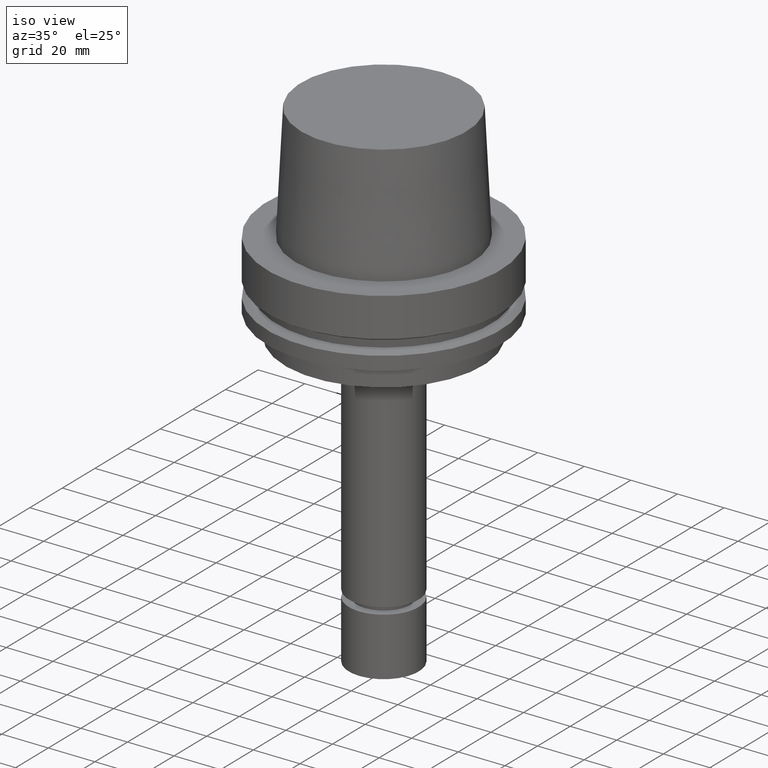
[diagram: clean part render]
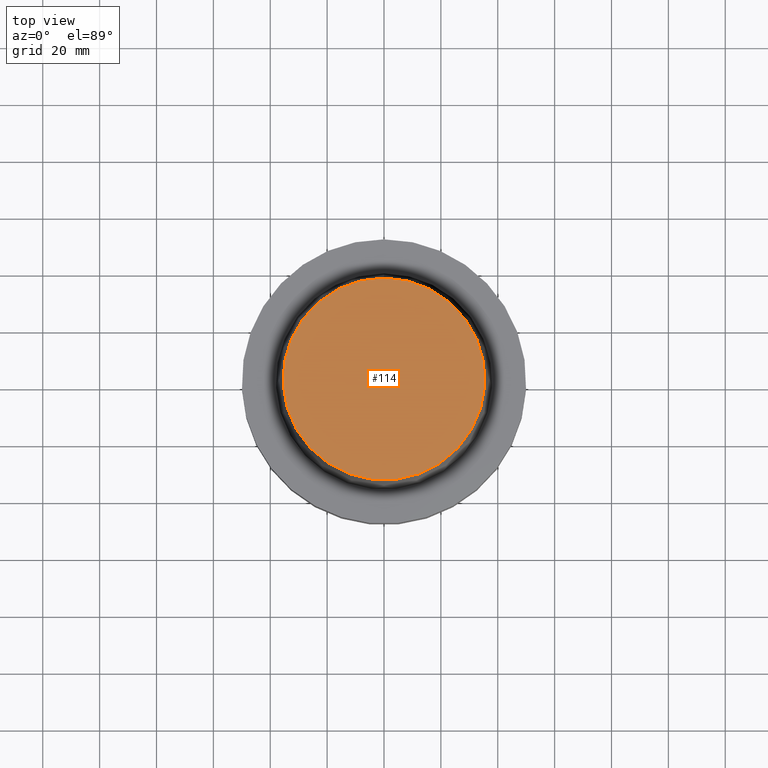
[diagram: tour spotlight — one face highlighted and labeled with its STEP entity id]
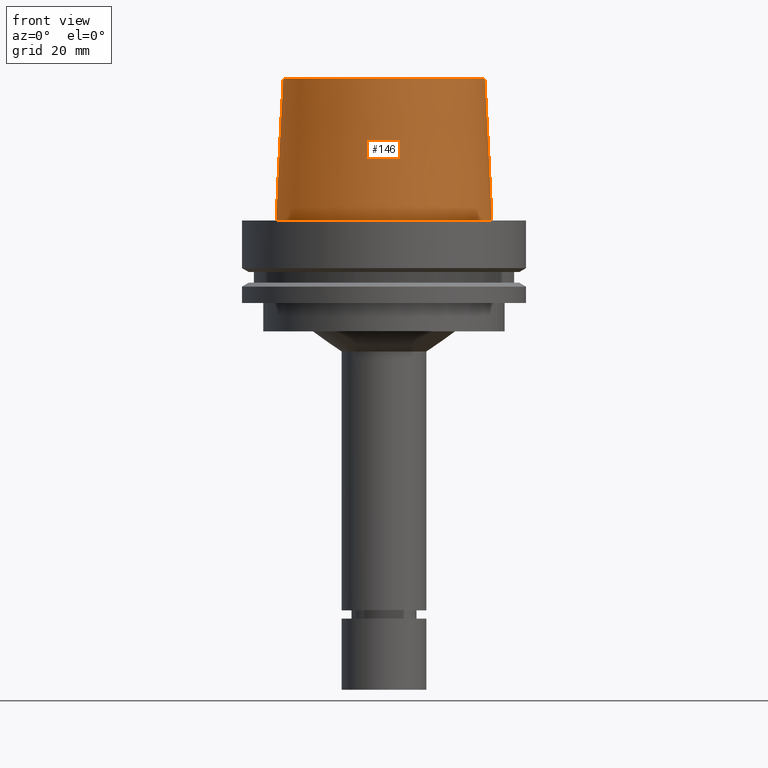
[diagram: tour spotlight — one face highlighted and labeled with its STEP entity id]
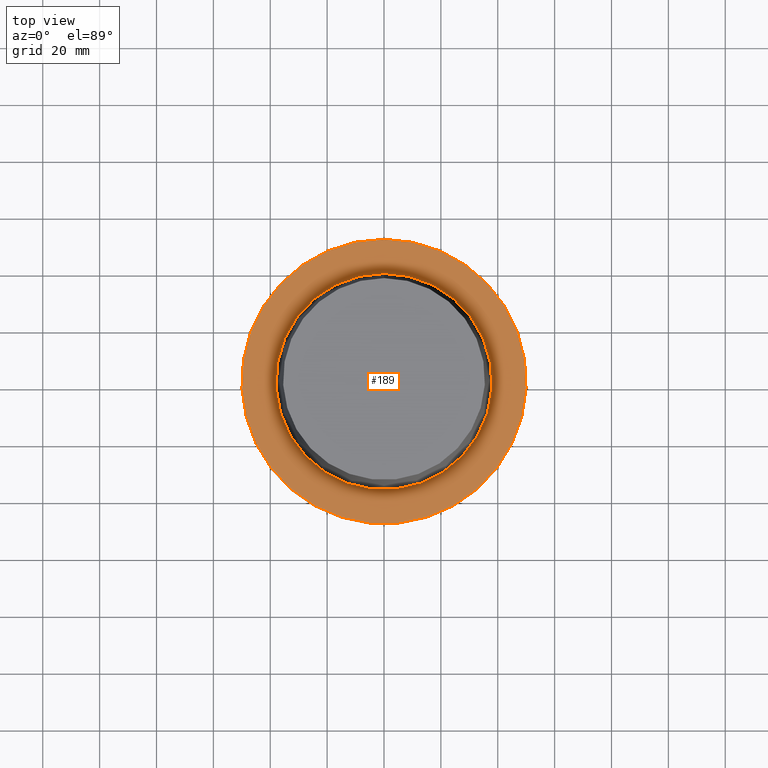
[diagram: tour spotlight — one face highlighted and labeled with its STEP entity id]
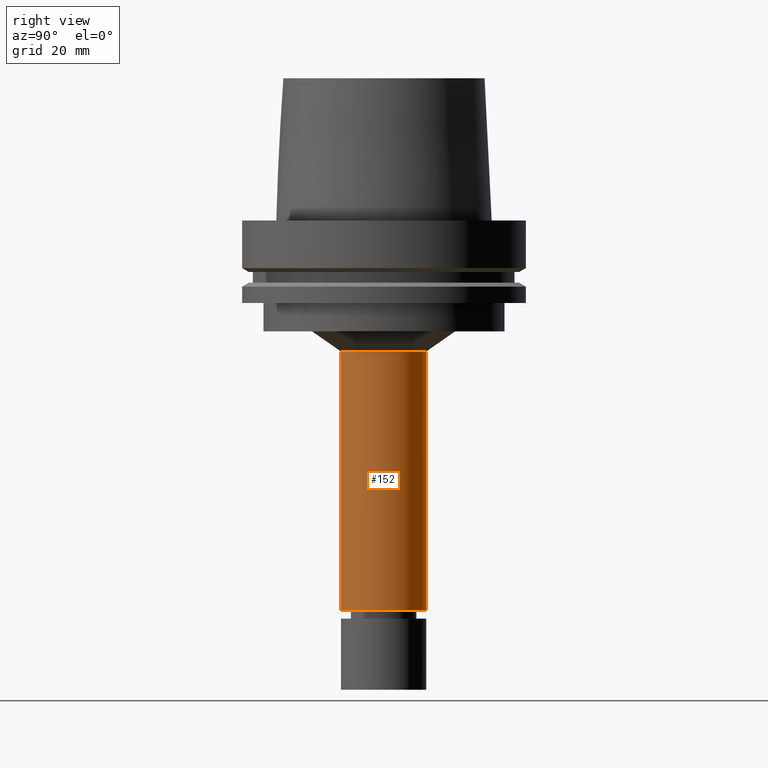
[diagram: tour spotlight — one face highlighted and labeled with its STEP entity id]
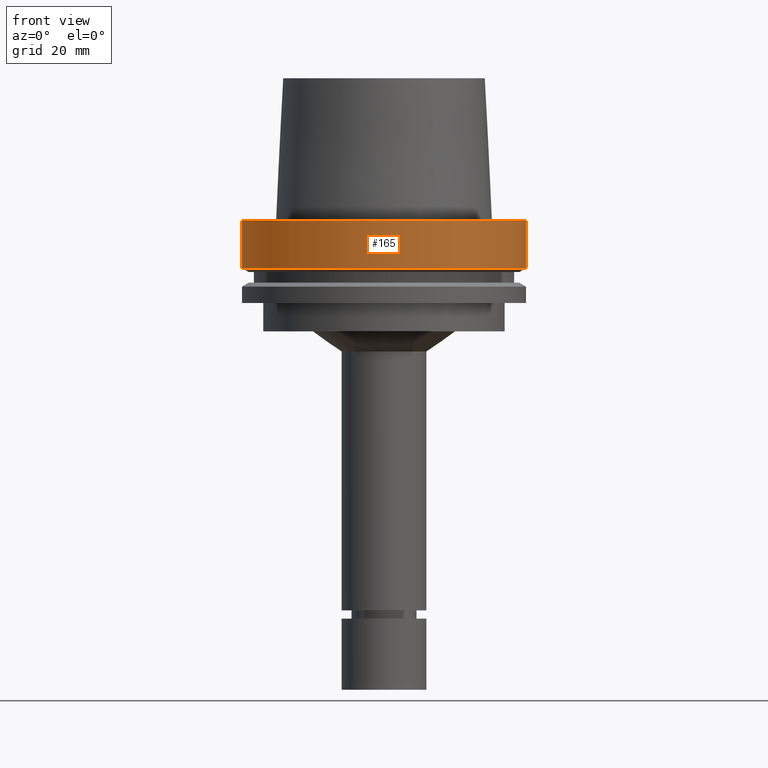
[diagram: tour spotlight — one face highlighted and labeled with its STEP entity id]
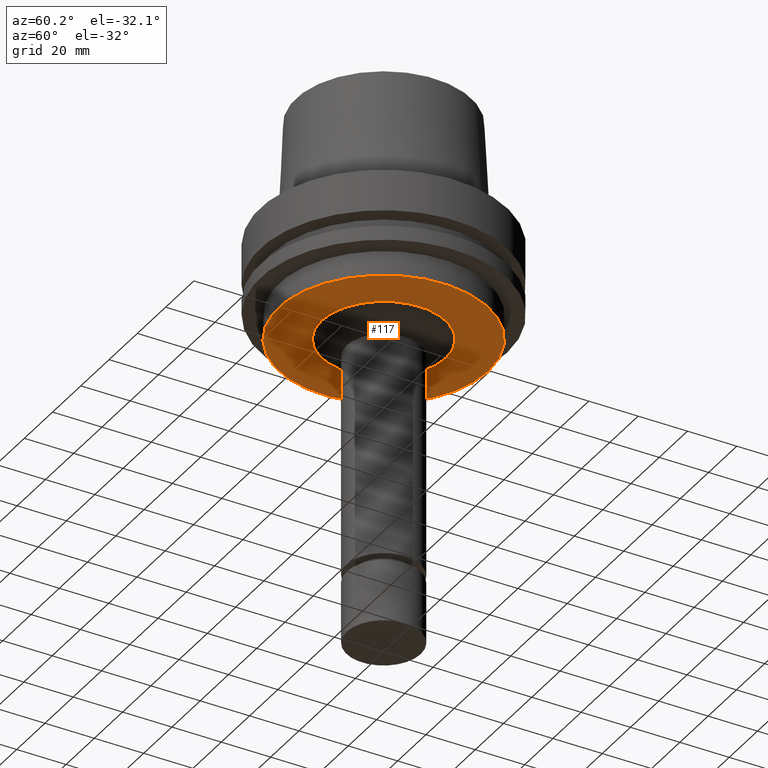
[diagram: tour spotlight — one face highlighted and labeled with its STEP entity id]
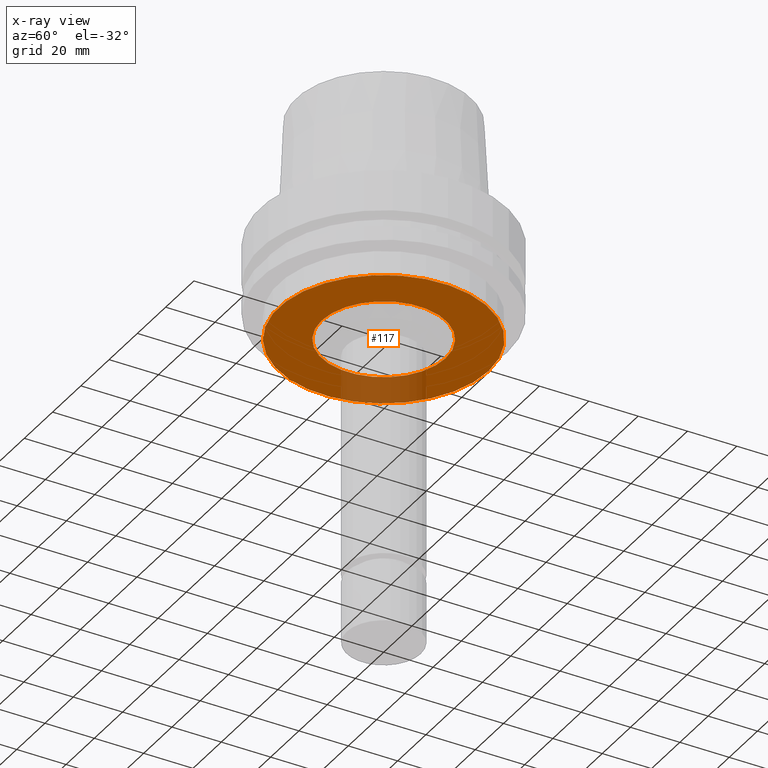
[diagram: x-ray of the same camera — body ghosted, this tour face saturated]
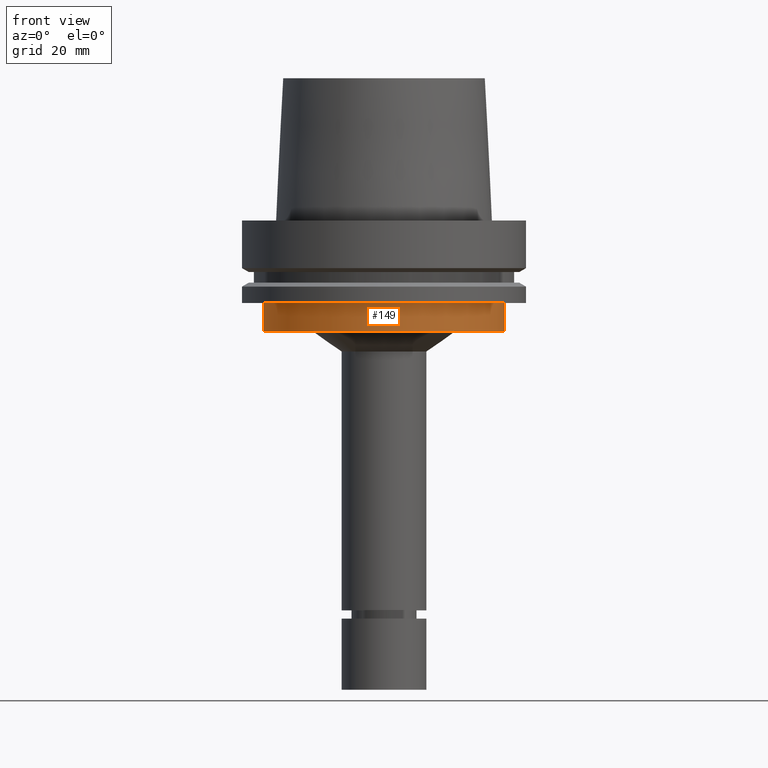
[diagram: tour spotlight — one face highlighted and labeled with its STEP entity id]
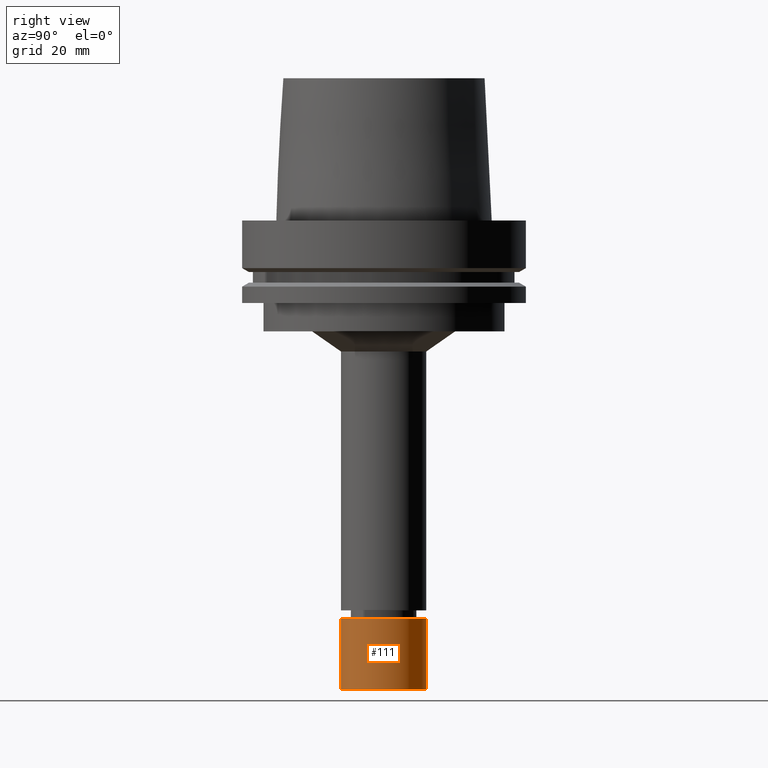
[diagram: tour spotlight — one face highlighted and labeled with its STEP entity id]
A machine part: a face-by-face anatomy tour. The part has 24 B-rep faces; the first image is the clean iso view, then the 8 largest visible faces are spotlighted one at a time (largest first), each with its STEP entity span.

Face 1 — top view, entity #114. In plain terms, the highlighted planar face has unit normal (-0, -0, 1).
Definition (entity closure, byte-faithful):
#106=EDGE_CURVE('Unnamed[1]',#261,#261,#262,.T.);
#114=ADVANCED_FACE('Unnamed[1]',(#273),#274,.T.);
#261=VERTEX_POINT('',#471);
#262=CIRCLE('',#472,35.5000000015618);
#273=FACE_OUTER_BOUND('',#486,.T.);
#274=PLANE('',#487);
#471=CARTESIAN_POINT('',(-3.06161699786838E-015,35.5000000015618,50.0));
#472=AXIS2_PLACEMENT_3D('',#699,#700,#701);
#486=EDGE_LOOP('',(#712));
#487=AXIS2_PLACEMENT_3D('',#713,#714,#715);
#699=CARTESIAN_POINT('',(-3.06161699786838E-015,-6.12323399573676E-015,50.0));
#700=DIRECTION('',(6.12323399573677E-017,1.22464679914735E-016,-1.0));
#701=DIRECTION('',(-1.23259516440783E-032,1.0,1.22464679914735E-016));
#712=ORIENTED_EDGE('',*,*,#106,.F.);
#713=CARTESIAN_POINT('',(-3.06161699786838E-015,17.7500000007809,50.0));
#714=DIRECTION('',(-6.12323399573677E-017,-1.22464679914735E-016,1.0));
#715=DIRECTION('',(1.23259516440783E-032,-1.0,-1.22464679914735E-016));

Face 2 — front view, entity #146. In plain terms, the highlighted conical surface has half-angle 2.862 deg.
Definition (entity closure, byte-faithful):
#101=EDGE_CURVE('Unnamed[1]',#253,#253,#254,.T.);
#106=EDGE_CURVE('Unnamed[1]',#261,#261,#262,.T.);
#146=ADVANCED_FACE('Unnamed[1]',(#320,#321),#322,.T.);
#253=VERTEX_POINT('',#461);
#254=CIRCLE('',#462,37.9999999999349);
#261=VERTEX_POINT('',#471);
#262=CIRCLE('',#472,35.5000000015618);
#320=FACE_BOUND('',#543,.T.);
#321=FACE_BOUND('',#544,.T.);
#322=CONICAL_SURFACE('',#545,36.7500000007484,0.0499583956894843);
#461=CARTESIAN_POINT('',(-3.3636548776863E-032,37.9999999999349,-2.44634216324803E-015));
#462=AXIS2_PLACEMENT_3D('',#690,#691,#692);
#471=CARTESIAN_POINT('',(-3.06161699786838E-015,35.5000000015618,50.0));
#472=AXIS2_PLACEMENT_3D('',#699,#700,#701);
#543=EDGE_LOOP('',(#761));
#544=EDGE_LOOP('',(#762));
#545=AXIS2_PLACEMENT_3D('',#763,#764,#765);
#690=CARTESIAN_POINT('',(0.0,0.0,0.0));
#691=DIRECTION('',(6.12323399573677E-017,1.22464679914735E-016,-1.0));
#692=DIRECTION('',(-1.23259516440783E-032,1.0,1.22464679914735E-016));
#699=CARTESIAN_POINT('',(-3.06161699786838E-015,-6.12323399573676E-015,50.0));
#700=DIRECTION('',(6.12323399573677E-017,1.22464679914735E-016,-1.0));
#701=DIRECTION('',(-1.23259516440783E-032,1.0,1.22464679914735E-016));
#761=ORIENTED_EDGE('',*,*,#101,.F.);
#762=ORIENTED_EDGE('',*,*,#106,.T.);
#763=CARTESIAN_POINT('',(-1.53080849893419E-015,-3.06161699786838E-015,25.0));
#764=DIRECTION('',(6.12323399573676E-017,1.22464679914735E-016,-1.0));
#765=DIRECTION('',(-1.23259516440783E-032,1.0,1.22464679914735E-016));

Face 3 — top view, entity #189. In plain terms, the highlighted planar face has unit normal (-0, -0, 1).
Definition (entity closure, byte-faithful):
#92=EDGE_CURVE('Unnamed[1]',#239,#239,#240,.T.);
#101=EDGE_CURVE('Unnamed[1]',#253,#253,#254,.T.);
#189=ADVANCED_FACE('Unnamed[1]',(#387,#388),#389,.T.);
#239=VERTEX_POINT('',#443);
#240=CIRCLE('',#444,50.0);
#253=VERTEX_POINT('',#461);
#254=CIRCLE('',#462,37.9999999999349);
#387=FACE_OUTER_BOUND('',#627,.T.);
#388=FACE_BOUND('',#628,.T.);
#389=PLANE('',#629);
#443=CARTESIAN_POINT('',(-1.81547968506605E-031,50.0,-9.76766004263236E-016));
#444=AXIS2_PLACEMENT_3D('',#675,#676,#677);
#461=CARTESIAN_POINT('',(-3.3636548776863E-032,37.9999999999349,-2.44634216324803E-015));
#462=AXIS2_PLACEMENT_3D('',#690,#691,#692);
#627=EDGE_LOOP('',(#837));
#628=EDGE_LOOP('',(#838));
#629=AXIS2_PLACEMENT_3D('',#839,#840,#841);
#675=CARTESIAN_POINT('',(0.0,0.0,0.0));
#676=DIRECTION('',(6.12323399573677E-017,1.22464679914735E-016,-1.0));
#677=DIRECTION('',(-1.23259516440783E-032,1.0,1.22464679914735E-016));
#690=CARTESIAN_POINT('',(0.0,0.0,0.0));
#691=DIRECTION('',(6.12323399573677E-017,1.22464679914735E-016,-1.0));
#692=DIRECTION('',(-1.23259516440783E-032,1.0,1.22464679914735E-016));
#837=ORIENTED_EDGE('',*,*,#92,.F.);
#838=ORIENTED_EDGE('',*,*,#101,.T.);
#839=CARTESIAN_POINT('',(-1.07592258641734E-031,43.9999999999675,-1.71155408375563E-015));
#840=DIRECTION('',(-6.12323399573677E-017,-1.22464679914735E-016,1.0));
#841=DIRECTION('',(1.23259516440783E-032,-1.0,-1.22464679914735E-016));

Face 4 — right view, entity #152. In plain terms, the highlighted cylindrical surface (bore or boss wall) has radius 15 mm, axis along (0, 0, -1).
Definition (entity closure, byte-faithful):
#99=EDGE_CURVE('Unnamed[1]',#250,#250,#251,.T.);
#128=EDGE_CURVE('Unnamed[1]',#294,#294,#295,.T.);
#152=ADVANCED_FACE('Unnamed[1]',(#330,#331),#332,.T.);
#250=VERTEX_POINT('',#457);
#251=CIRCLE('',#458,15.0);
#294=VERTEX_POINT('',#511);
#295=CIRCLE('',#512,15.0);
#330=FACE_BOUND('',#555,.T.);
#331=FACE_BOUND('',#556,.T.);
#332=CYLINDRICAL_SURFACE('',#557,15.0);
#457=CARTESIAN_POINT('',(2.82064573751942E-015,15.0,-46.06464067));
#458=AXIS2_PLACEMENT_3D('',#687,#688,#689);
#511=CARTESIAN_POINT('',(8.39495380815506E-015,15.0,-137.099999999999));
#512=AXIS2_PLACEMENT_3D('',#735,#736,#737);
#555=EDGE_LOOP('',(#773));
#556=EDGE_LOOP('',(#774));
#557=AXIS2_PLACEMENT_3D('',#775,#776,#777);
#687=CARTESIAN_POINT('',(2.82064573751942E-015,5.64129147503885E-015,-46.06464067));
#688=DIRECTION('',(6.12323399573677E-017,1.22464679914735E-016,-1.0));
#689=DIRECTION('',(-1.23259516440783E-032,1.0,1.22464679914735E-016));
#735=CARTESIAN_POINT('',(8.39495380815506E-015,1.67899076163101E-014,-137.099999999999));
#736=DIRECTION('',(6.12323399573677E-017,1.22464679914735E-016,-1.0));
#737=DIRECTION('',(-1.23259516440783E-032,1.0,1.22464679914735E-016));
#773=ORIENTED_EDGE('',*,*,#128,.F.);
#774=ORIENTED_EDGE('',*,*,#99,.T.);
#775=CARTESIAN_POINT('',(5.60779977283724E-015,1.12155995456745E-014,-91.5823203349997));
#776=DIRECTION('',(6.12323399573677E-017,1.22464679914735E-016,-1.0));
#777=DIRECTION('',(-1.23259516440783E-032,1.0,1.22464679914735E-016));

Face 5 — front view, entity #165. In plain terms, the highlighted cylindrical surface (bore or boss wall) has radius 50 mm, axis along (0, 0, -1).
Definition (entity closure, byte-faithful):
#92=EDGE_CURVE('Unnamed[1]',#239,#239,#240,.T.);
#94=EDGE_CURVE('Unnamed[1]',#242,#242,#243,.T.);
#165=ADVANCED_FACE('Unnamed[1]',(#350,#351),#352,.T.);
#239=VERTEX_POINT('',#443);
#240=CIRCLE('',#444,50.0);
#242=VERTEX_POINT('',#447);
#243=CIRCLE('',#448,50.0);
#350=FACE_BOUND('',#580,.T.);
#351=FACE_BOUND('',#581,.T.);
#352=CYLINDRICAL_SURFACE('',#582,50.0);
#443=CARTESIAN_POINT('',(-1.81547968506605E-031,50.0,-9.76766004263236E-016));
#444=AXIS2_PLACEMENT_3D('',#675,#676,#677);
#447=CARTESIAN_POINT('',(1.0257889421431E-015,50.0,-16.75240474));
#448=AXIS2_PLACEMENT_3D('',#678,#679,#680);
#580=EDGE_LOOP('',(#796));
#581=EDGE_LOOP('',(#797));
#582=AXIS2_PLACEMENT_3D('',#798,#799,#800);
#675=CARTESIAN_POINT('',(0.0,0.0,0.0));
#676=DIRECTION('',(6.12323399573677E-017,1.22464679914735E-016,-1.0));
#677=DIRECTION('',(-1.23259516440783E-032,1.0,1.22464679914735E-016));
#678=CARTESIAN_POINT('',(1.0257889421431E-015,2.05157788428619E-015,-16.75240474));
#679=DIRECTION('',(6.12323399573677E-017,1.22464679914735E-016,-1.0));
#680=DIRECTION('',(-1.23259516440783E-032,1.0,1.22464679914735E-016));
#796=ORIENTED_EDGE('',*,*,#94,.F.);
#797=ORIENTED_EDGE('',*,*,#92,.T.);
#798=CARTESIAN_POINT('',(5.12894471071548E-016,1.0257889421431E-015,-8.37620236999999));
#799=DIRECTION('',(6.12323399573677E-017,1.22464679914735E-016,-1.0));
#800=DIRECTION('',(-1.23259516440783E-032,1.0,1.22464679914735E-016));

Face 6 — auxiliary view, entity #117. An x-ray twin of the same camera follows (body ghosted, this face saturated) — the face is partly hidden behind the body. In plain terms, the highlighted planar face has unit normal (0, 0, -1).
Definition (entity closure, byte-faithful):
#117=ADVANCED_FACE('Unnamed[1]',(#277,#278),#279,.T.);
#136=EDGE_CURVE('Unnamed[1]',#307,#307,#308,.T.);
#198=EDGE_CURVE('Unnamed[1]',#402,#402,#403,.T.);
#277=FACE_BOUND('',#491,.T.);
#278=FACE_OUTER_BOUND('',#492,.T.);
#279=PLANE('',#493);
#307=VERTEX_POINT('',#527);
#308=CIRCLE('',#528,25.1435726714537);
#402=VERTEX_POINT('',#646);
#403=CIRCLE('',#647,42.5);
#491=EDGE_LOOP('',(#717));
#492=EDGE_LOOP('',(#718));
#493=AXIS2_PLACEMENT_3D('',#719,#720,#721);
#527=CARTESIAN_POINT('',(2.38806125833734E-015,25.1435726714537,-39.0));
#528=AXIS2_PLACEMENT_3D('',#750,#751,#752);
#646=CARTESIAN_POINT('',(2.38806125833734E-015,42.5,-39.0));
#647=AXIS2_PLACEMENT_3D('',#854,#855,#856);
#717=ORIENTED_EDGE('',*,*,#136,.F.);
#718=ORIENTED_EDGE('',*,*,#198,.T.);
#719=CARTESIAN_POINT('',(2.38806125833734E-015,33.8217863357269,-39.0));
#720=DIRECTION('',(6.12323399573677E-017,1.22464679914735E-016,-1.0));
#721=DIRECTION('',(-1.23259516440783E-032,1.0,1.22464679914735E-016));
#750=CARTESIAN_POINT('',(2.38806125833734E-015,4.77612251667468E-015,-39.0));
#751=DIRECTION('',(6.12323399573677E-017,1.22464679914735E-016,-1.0));
#752=DIRECTION('',(-1.23259516440783E-032,1.0,1.22464679914735E-016));
#854=CARTESIAN_POINT('',(2.38806125833734E-015,4.77612251667468E-015,-39.0));
#855=DIRECTION('',(6.12323399573677E-017,1.22464679914735E-016,-1.0));
#856=DIRECTION('',(-1.23259516440783E-032,1.0,1.22464679914735E-016));

Face 7 — front view, entity #149. In plain terms, the highlighted cylindrical surface (bore or boss wall) has radius 42.5 mm, axis along (0, 0, -1).
Definition (entity closure, byte-faithful):
#149=ADVANCED_FACE('Unnamed[1]',(#325,#326),#327,.T.);
#181=EDGE_CURVE('Unnamed[1]',#375,#375,#376,.T.);
#198=EDGE_CURVE('Unnamed[1]',#402,#402,#403,.T.);
#325=FACE_BOUND('',#549,.T.);
#326=FACE_BOUND('',#550,.T.);
#327=CYLINDRICAL_SURFACE('',#551,42.5);
#375=VERTEX_POINT('',#612);
#376=CIRCLE('',#613,42.5);
#402=VERTEX_POINT('',#646);
#403=CIRCLE('',#647,42.5);
#549=EDGE_LOOP('',(#767));
#550=EDGE_LOOP('',(#768));
#551=AXIS2_PLACEMENT_3D('',#769,#770,#771);
#612=CARTESIAN_POINT('',(1.77573785876366E-015,42.5,-29.0));
#613=AXIS2_PLACEMENT_3D('',#824,#825,#826);
#646=CARTESIAN_POINT('',(2.38806125833734E-015,42.5,-39.0));
#647=AXIS2_PLACEMENT_3D('',#854,#855,#856);
#767=ORIENTED_EDGE('',*,*,#198,.F.);
#768=ORIENTED_EDGE('',*,*,#181,.T.);
#769=CARTESIAN_POINT('',(2.0818995585505E-015,4.163799117101E-015,-34.0));
#770=DIRECTION('',(6.12323399573677E-017,1.22464679914735E-016,-1.0));
#771=DIRECTION('',(-1.23259516440783E-032,1.0,1.22464679914735E-016));
#824=CARTESIAN_POINT('',(1.77573785876366E-015,3.55147571752733E-015,-29.0));
#825=DIRECTION('',(6.12323399573677E-017,1.22464679914735E-016,-1.0));
#826=DIRECTION('',(-1.23259516440783E-032,1.0,1.22464679914735E-016));
#854=CARTESIAN_POINT('',(2.38806125833734E-015,4.77612251667468E-015,-39.0));
#855=DIRECTION('',(6.12323399573677E-017,1.22464679914735E-016,-1.0));
#856=DIRECTION('',(-1.23259516440783E-032,1.0,1.22464679914735E-016));

Face 8 — right view, entity #111. In plain terms, the highlighted cylindrical surface (bore or boss wall) has radius 15 mm, axis along (0, 0, -1).
Definition (entity closure, byte-faithful):
#111=ADVANCED_FACE('Unnamed[1]',(#268,#269),#270,.T.);
#186=EDGE_CURVE('Unnamed[1]',#383,#383,#384,.T.);
#196=EDGE_CURVE('Unnamed[1]',#399,#399,#400,.T.);
#268=FACE_BOUND('',#480,.T.);
#269=FACE_BOUND('',#481,.T.);
#270=CYLINDRICAL_SURFACE('',#482,15.0);
#383=VERTEX_POINT('',#622);
#384=CIRCLE('',#623,15.0000000000001);
#399=VERTEX_POINT('',#642);
#400=CIRCLE('',#643,15.0);
#480=EDGE_LOOP('',(#706));
#481=EDGE_LOOP('',(#707));
#482=AXIS2_PLACEMENT_3D('',#708,#709,#710);
#622=CARTESIAN_POINT('',(8.57252759403147E-015,15.0000000000001,-140.0));
#623=AXIS2_PLACEMENT_3D('',#833,#834,#835);
#642=CARTESIAN_POINT('',(1.01033360929657E-014,15.0,-165.0));
#643=AXIS2_PLACEMENT_3D('',#851,#852,#853);
#706=ORIENTED_EDGE('',*,*,#196,.F.);
#707=ORIENTED_EDGE('',*,*,#186,.T.);
#708=CARTESIAN_POINT('',(9.33793184349857E-015,1.86758636869971E-014,-152.5));
#709=DIRECTION('',(6.12323399573677E-017,1.22464679914735E-016,-1.0));
#710=DIRECTION('',(-1.23259516440783E-032,1.0,1.22464679914735E-016));
#833=CARTESIAN_POINT('',(8.57252759403147E-015,1.71450551880629E-014,-140.0));
#834=DIRECTION('',(6.12323399573677E-017,1.22464679914735E-016,-1.0));
#835=DIRECTION('',(-1.23259516440783E-032,1.0,1.22464679914735E-016));
#851=CARTESIAN_POINT('',(1.01033360929657E-014,2.02066721859313E-014,-165.0));
#852=DIRECTION('',(6.12323399573677E-017,1.22464679914735E-016,-1.0));
#853=DIRECTION('',(-1.23259516440783E-032,1.0,1.22464679914735E-016));